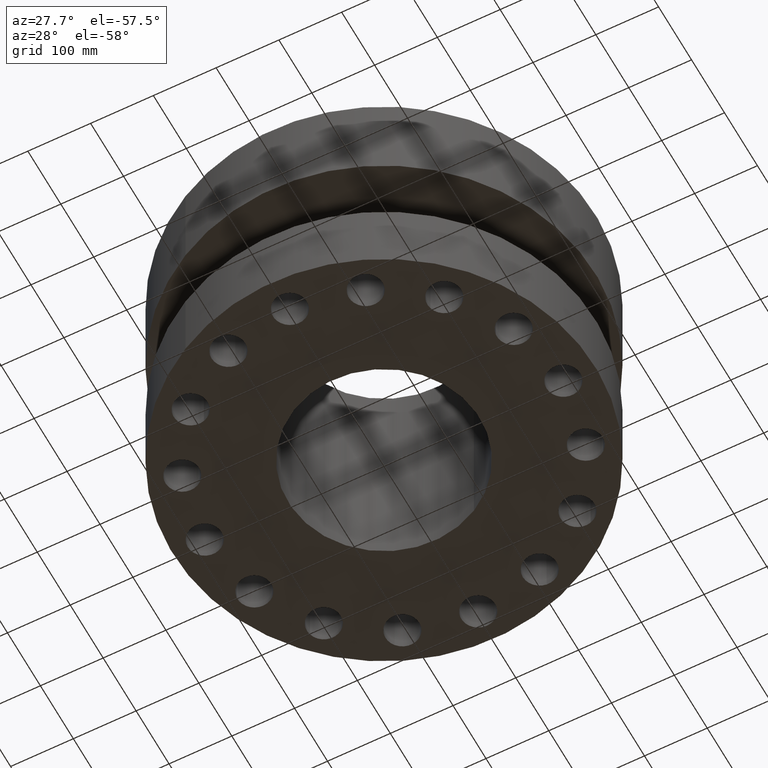
[diagram: clean part render]
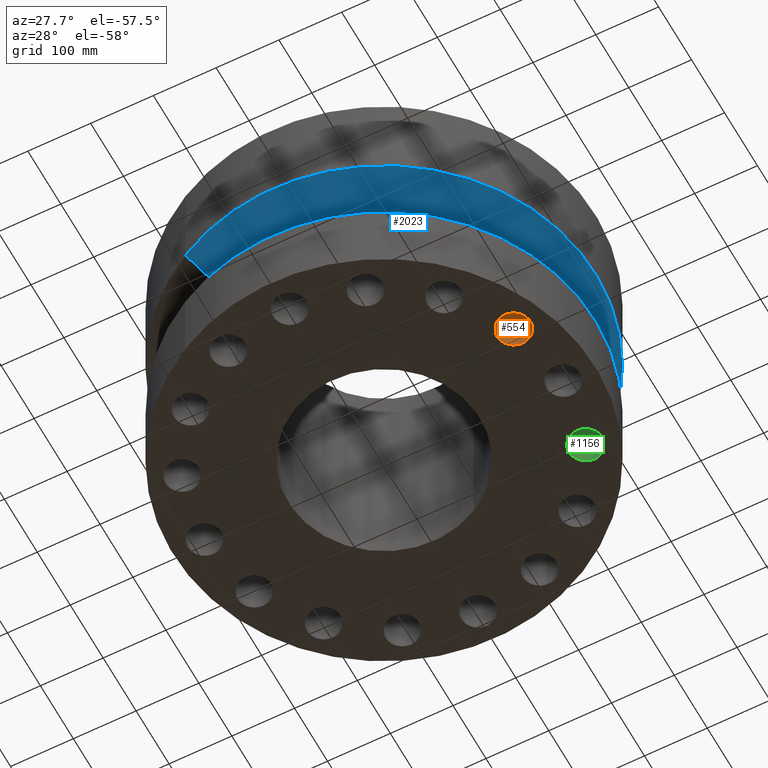
[diagram: same view with three faces highlighted in distinct colors, each labeled with its STEP entity id]
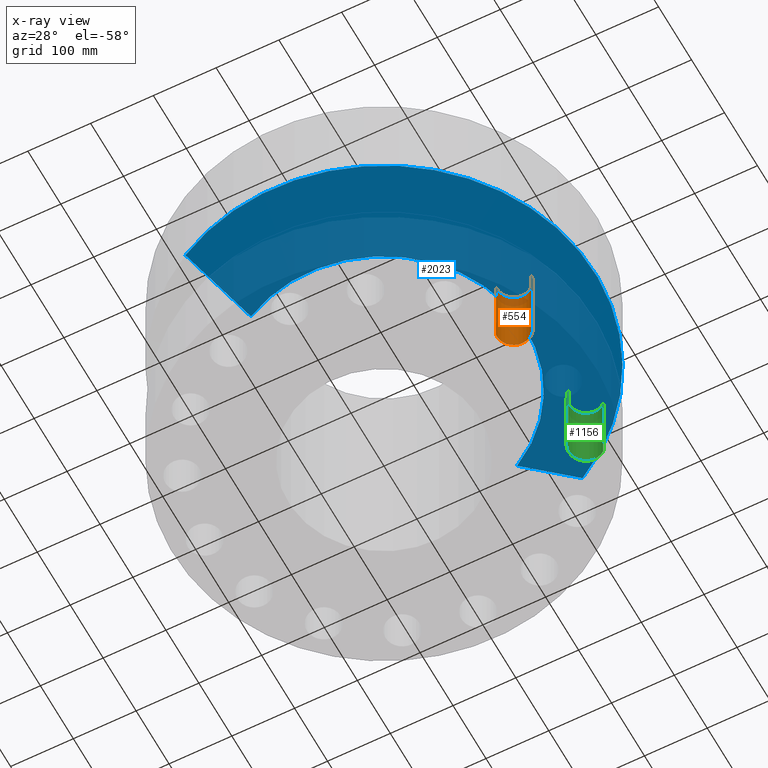
[diagram: x-ray of the same camera — body ghosted, the three highlighted faces saturated]
A machine part, auxiliary view with three faces highlighted in distinct colors.
The next image is the same camera in x-ray (body ghosted, the three faces saturated) — at least one of them is partly hidden behind the body in this view.
Their STEP definitions:

[orange] entity #554 — the highlighted cylindrical surface (edge-blend (fillet) strip) has radius 26.924 mm, axis along (-0, 0, 1).
#127=AXIS2_PLACEMENT_3D('Circle Axis2P3D',#125,#126,$) ;
#515=AXIS2_PLACEMENT_3D('Cylinder Axis2P3D',#512,#513,#514) ;
#545=AXIS2_PLACEMENT_3D('Circle Axis2P3D',#543,#544,$) ;
#125=CARTESIAN_POINT('Axis2P3D Location',(10.3936447408,-4.30518861412,4.88000000002)) ;
#129=CARTESIAN_POINT('Vertex',(9.33974103643,-4.41870945777,4.88000000002)) ;
#131=CARTESIAN_POINT('Vertex',(11.4475484452,-4.19166777048,4.88000000002)) ;
#512=CARTESIAN_POINT('Axis2P3D Location',(10.3936447408,-4.30518861412,0.00393700787402)) ;
#517=CARTESIAN_POINT('Line Origine',(11.4475484452,-4.19166777048,2.44000000001)) ;
#521=CARTESIAN_POINT('Vertex',(11.4475484452,-4.19166777048,2.2401153548E-016)) ;
#528=CARTESIAN_POINT('Vertex',(9.33974103643,-4.41870945777,2.2401153548E-016)) ;
#531=CARTESIAN_POINT('Line Origine',(9.33974103643,-4.41870945777,2.44000000001)) ;
#543=CARTESIAN_POINT('Axis2P3D Location',(10.3936447408,-4.30518861412,0.)) ;
#126=DIRECTION('Axis2P3D Direction',(0.,0.,-0.0393700787402)) ;
#513=DIRECTION('Axis2P3D Direction',(-0.,0.,0.0393700787402)) ;
#514=DIRECTION('Axis2P3D XDirection',(0.0391436526652,0.00421634391778,0.)) ;
#518=DIRECTION('Vector Direction',(0.,0.,0.0393700787402)) ;
#532=DIRECTION('Vector Direction',(0.,0.,0.0393700787402)) ;
#544=DIRECTION('Axis2P3D Direction',(-0.,0.,0.0393700787402)) ;
#519=VECTOR('Line Direction',#518,0.0393700787402) ;
#533=VECTOR('Line Direction',#532,0.0393700787402) ;
#549=ORIENTED_EDGE('',*,*,#535,.T.) ;
#550=ORIENTED_EDGE('',*,*,#547,.T.) ;
#551=ORIENTED_EDGE('',*,*,#523,.F.) ;
#552=ORIENTED_EDGE('',*,*,#133,.F.) ;
#554=ADVANCED_FACE('PartBody',(#553),#516,.F.) ;
#128=CIRCLE('generated circle',#127,1.06) ;
#546=CIRCLE('generated circle',#545,1.06) ;
#516=CYLINDRICAL_SURFACE('generated cylinder',#515,1.06) ;
#133=EDGE_CURVE('',#130,#132,#128,.T.) ;
#523=EDGE_CURVE('',#132,#522,#520,.F.) ;
#535=EDGE_CURVE('',#130,#529,#534,.F.) ;
#547=EDGE_CURVE('',#529,#522,#546,.F.) ;
#548=EDGE_LOOP('',(#549,#550,#551,#552)) ;
#553=FACE_OUTER_BOUND('',#548,.T.) ;
#520=LINE('Line',#517,#519) ;
#534=LINE('Line',#531,#533) ;
#130=VERTEX_POINT('',#129) ;
#132=VERTEX_POINT('',#131) ;
#522=VERTEX_POINT('',#521) ;
#529=VERTEX_POINT('',#528) ;

[blue] entity #2023 — the highlighted conical surface has half-angle 60 deg.
#1451=AXIS2_PLACEMENT_3D('Circle Axis2P3D',#1449,#1450,$) ;
#1996=AXIS2_PLACEMENT_3D('Cone Axis2P3D',#1993,#1994,#1995) ;
#2007=AXIS2_PLACEMENT_3D('Circle Axis2P3D',#2005,#2006,$) ;
#1446=CARTESIAN_POINT('Vertex',(4.25490165513,7.78854523681,7.13000000003)) ;
#1449=CARTESIAN_POINT('Axis2P3D Location',(0.,0.,7.13000000003)) ;
#1453=CARTESIAN_POINT('Vertex',(-4.25490165513,-7.78854523681,7.13000000003)) ;
#1993=CARTESIAN_POINT('Axis2P3D Location',(0.,0.,7.13000000003)) ;
#1998=CARTESIAN_POINT('Line Origine',(5.30364502083,9.70825709095,8.39295371389)) ;
#2002=CARTESIAN_POINT('Vertex',(6.35238838653,11.6279689451,9.65590742774)) ;
#2005=CARTESIAN_POINT('Axis2P3D Location',(0.,0.,9.65590742774)) ;
#2009=CARTESIAN_POINT('Vertex',(-6.35238838653,-11.6279689451,9.65590742774)) ;
#2012=CARTESIAN_POINT('Line Origine',(-5.30364502083,-9.70825709095,8.39295371389)) ;
#1450=DIRECTION('Axis2P3D Direction',(0.,0.,-0.0393700787402)) ;
#1994=DIRECTION('Axis2P3D Direction',(-0.,-0.,0.0393700787402)) ;
#1995=DIRECTION('Axis2P3D XDirection',(0.0188750212049,0.0345504945626,0.)) ;
#1999=DIRECTION('Vector Direction',(0.0163462478604,0.0299216060045,0.0196850393701)) ;
#2006=DIRECTION('Axis2P3D Direction',(-0.,0.,0.0393700787402)) ;
#2013=DIRECTION('Vector Direction',(-0.0163462478604,-0.0299216060045,0.0196850393701)) ;
#2000=VECTOR('Line Direction',#1999,0.0393700787402) ;
#2014=VECTOR('Line Direction',#2013,0.0393700787402) ;
#2018=ORIENTED_EDGE('',*,*,#1455,.F.) ;
#2019=ORIENTED_EDGE('',*,*,#2004,.T.) ;
#2020=ORIENTED_EDGE('',*,*,#2011,.T.) ;
#2021=ORIENTED_EDGE('',*,*,#2016,.F.) ;
#2023=ADVANCED_FACE('PartBody',(#2022),#1997,.T.) ;
#1452=CIRCLE('generated circle',#1451,8.87500000004) ;
#2008=CIRCLE('generated circle',#2007,13.2500000001) ;
#1997=CONICAL_SURFACE('Cone',#1996,8.87500000004,1.0471975512) ;
#1455=EDGE_CURVE('',#1447,#1454,#1452,.T.) ;
#2004=EDGE_CURVE('',#1447,#2003,#2001,.T.) ;
#2011=EDGE_CURVE('',#2003,#2010,#2008,.F.) ;
#2016=EDGE_CURVE('',#1454,#2010,#2015,.T.) ;
#2017=EDGE_LOOP('',(#2018,#2019,#2020,#2021)) ;
#2022=FACE_OUTER_BOUND('',#2017,.T.) ;
#2001=LINE('Line',#1998,#2000) ;
#2015=LINE('Line',#2012,#2014) ;
#1447=VERTEX_POINT('',#1446) ;
#1454=VERTEX_POINT('',#1453) ;
#2003=VERTEX_POINT('',#2002) ;
#2010=VERTEX_POINT('',#2009) ;

[green] entity #1156 — the highlighted cylindrical surface (edge-blend (fillet) strip) has radius 26.924 mm, axis along (0, -0, 1).
#379=AXIS2_PLACEMENT_3D('Circle Axis2P3D',#377,#378,$) ;
#1117=AXIS2_PLACEMENT_3D('Cylinder Axis2P3D',#1114,#1115,#1116) ;
#1147=AXIS2_PLACEMENT_3D('Circle Axis2P3D',#1145,#1146,$) ;
#377=CARTESIAN_POINT('Axis2P3D Location',(10.3936447408,4.30518861412,4.88000000002)) ;
#381=CARTESIAN_POINT('Vertex',(9.72869364307,3.47969479971,4.88000000002)) ;
#383=CARTESIAN_POINT('Vertex',(11.0585958385,5.13068242854,4.88000000002)) ;
#1114=CARTESIAN_POINT('Axis2P3D Location',(10.3936447408,4.30518861412,0.00393700787402)) ;
#1119=CARTESIAN_POINT('Line Origine',(11.0585958385,5.13068242854,2.44000000001)) ;
#1123=CARTESIAN_POINT('Vertex',(11.0585958385,5.13068242854,2.2401153548E-016)) ;
#1130=CARTESIAN_POINT('Vertex',(9.72869364307,3.47969479971,2.2401153548E-016)) ;
#1133=CARTESIAN_POINT('Line Origine',(9.72869364307,3.47969479971,2.44000000001)) ;
#1145=CARTESIAN_POINT('Axis2P3D Location',(10.3936447408,4.30518861412,0.)) ;
#378=DIRECTION('Axis2P3D Direction',(0.,0.,-0.0393700787402)) ;
#1115=DIRECTION('Axis2P3D Direction',(0.,-0.,0.0393700787402)) ;
#1116=DIRECTION('Axis2P3D XDirection',(0.0246973368639,0.030660147616,0.)) ;
#1120=DIRECTION('Vector Direction',(0.,0.,0.0393700787402)) ;
#1134=DIRECTION('Vector Direction',(0.,0.,0.0393700787402)) ;
#1146=DIRECTION('Axis2P3D Direction',(0.,-0.,0.0393700787402)) ;
#1121=VECTOR('Line Direction',#1120,0.0393700787402) ;
#1135=VECTOR('Line Direction',#1134,0.0393700787402) ;
#1151=ORIENTED_EDGE('',*,*,#1137,.T.) ;
#1152=ORIENTED_EDGE('',*,*,#1149,.T.) ;
#1153=ORIENTED_EDGE('',*,*,#1125,.F.) ;
#1154=ORIENTED_EDGE('',*,*,#385,.F.) ;
#1156=ADVANCED_FACE('PartBody',(#1155),#1118,.F.) ;
#380=CIRCLE('generated circle',#379,1.06) ;
#1148=CIRCLE('generated circle',#1147,1.06) ;
#1118=CYLINDRICAL_SURFACE('generated cylinder',#1117,1.06) ;
#385=EDGE_CURVE('',#382,#384,#380,.T.) ;
#1125=EDGE_CURVE('',#384,#1124,#1122,.F.) ;
#1137=EDGE_CURVE('',#382,#1131,#1136,.F.) ;
#1149=EDGE_CURVE('',#1131,#1124,#1148,.F.) ;
#1150=EDGE_LOOP('',(#1151,#1152,#1153,#1154)) ;
#1155=FACE_OUTER_BOUND('',#1150,.T.) ;
#1122=LINE('Line',#1119,#1121) ;
#1136=LINE('Line',#1133,#1135) ;
#382=VERTEX_POINT('',#381) ;
#384=VERTEX_POINT('',#383) ;
#1124=VERTEX_POINT('',#1123) ;
#1131=VERTEX_POINT('',#1130) ;